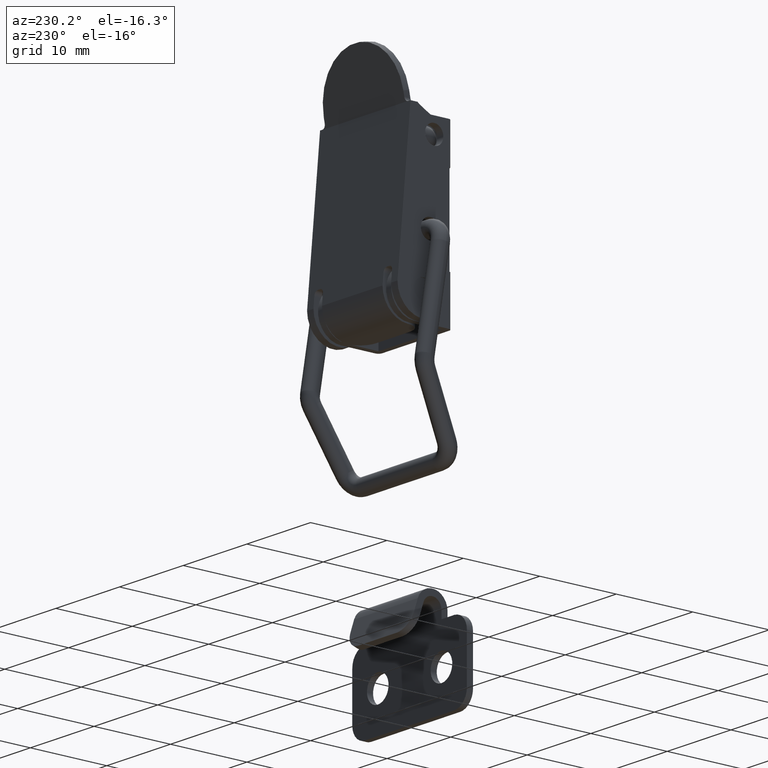
[diagram: clean part render]
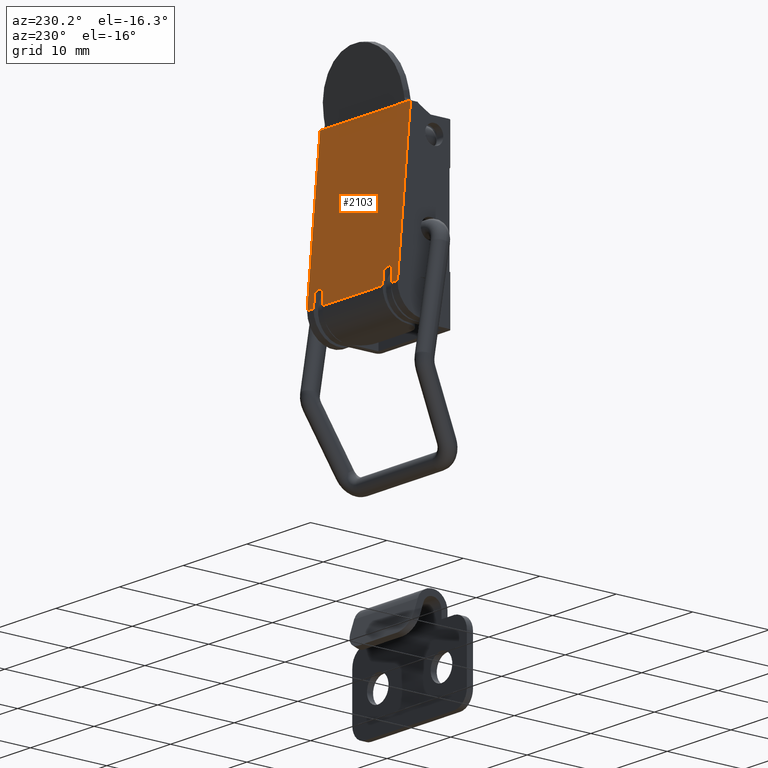
[diagram: same view with one face highlighted and labeled with its STEP entity id]
A machine part, auxiliary view. The second image highlights one B-rep face of the part: STEP entity #2103.
In plain terms, the highlighted planar face has unit normal (0, 0.9961, 0.0882).
Its self-contained STEP definition (entity closure, byte-faithful):
#101=PLANE('',#2303);
#187=LINE('',#3293,#353);
#196=LINE('',#3328,#362);
#213=LINE('',#3406,#379);
#217=LINE('',#3414,#383);
#223=LINE('',#3446,#389);
#227=LINE('',#3461,#393);
#230=LINE('',#3476,#396);
#234=LINE('',#3488,#400);
#236=LINE('',#3492,#402);
#237=LINE('',#3493,#403);
#238=LINE('',#3494,#404);
#239=LINE('',#3495,#405);
#240=LINE('',#3497,#406);
#241=LINE('',#3498,#407);
#353=VECTOR('',#2634,19.2751134886413);
#362=VECTOR('',#2665,1.39986853272778);
#379=VECTOR('',#2722,0.35001183617457);
#383=VECTOR('',#2730,0.349988155921943);
#389=VECTOR('',#2750,1.39986853272778);
#393=VECTOR('',#2764,1.39986853272777);
#396=VECTOR('',#2781,0.349999999999999);
#400=VECTOR('',#2793,0.35);
#402=VECTOR('',#2797,9.5);
#403=VECTOR('',#2798,1.39986853272777);
#404=VECTOR('',#2799,1.);
#405=VECTOR('',#2800,13.5000000079035);
#406=VECTOR('',#2801,19.2751134886413);
#407=VECTOR('',#2802,0.999999999919904);
#573=FACE_OUTER_BOUND('',#718,.T.);
#718=EDGE_LOOP('',(#1724,#1725,#1726,#1727,#1728,#1729,#1730,#1731,#1732,
#1733,#1734,#1735,#1736,#1737,#1738,#1739,#1740,#1741));
#864=CIRCLE('',#2283,0.5);
#868=CIRCLE('',#2289,0.5);
#874=CIRCLE('',#2297,0.5);
#876=CIRCLE('',#2301,0.5);
#987=VERTEX_POINT('',#3290);
#988=VERTEX_POINT('',#3292);
#1002=VERTEX_POINT('',#3325);
#1003=VERTEX_POINT('',#3327);
#1020=VERTEX_POINT('',#3390);
#1024=VERTEX_POINT('',#3402);
#1026=VERTEX_POINT('',#3412);
#1029=VERTEX_POINT('',#3430);
#1030=VERTEX_POINT('',#3432);
#1035=VERTEX_POINT('',#3444);
#1038=VERTEX_POINT('',#3451);
#1039=VERTEX_POINT('',#3453);
#1041=VERTEX_POINT('',#3459);
#1046=VERTEX_POINT('',#3472);
#1049=VERTEX_POINT('',#3482);
#1050=VERTEX_POINT('',#3484);
#1051=VERTEX_POINT('',#3491);
#1052=VERTEX_POINT('',#3496);
#1220=EDGE_CURVE('',#987,#988,#187,.T.);
#1237=EDGE_CURVE('',#1003,#1002,#196,.T.);
#1268=EDGE_CURVE('',#1024,#987,#213,.T.);
#1272=EDGE_CURVE('',#1026,#1020,#217,.T.);
#1276=EDGE_CURVE('',#1029,#1030,#864,.T.);
#1283=EDGE_CURVE('',#1029,#1035,#223,.T.);
#1286=EDGE_CURVE('',#1038,#1039,#868,.T.);
#1290=EDGE_CURVE('',#1038,#1041,#227,.T.);
#1297=EDGE_CURVE('',#1046,#1002,#874,.T.);
#1298=EDGE_CURVE('',#1046,#1030,#230,.T.);
#1302=EDGE_CURVE('',#1049,#1050,#876,.T.);
#1304=EDGE_CURVE('',#1049,#1039,#234,.T.);
#1306=EDGE_CURVE('',#1035,#1051,#236,.T.);
#1307=EDGE_CURVE('',#1051,#1050,#237,.T.);
#1308=EDGE_CURVE('',#1041,#988,#238,.T.);
#1309=EDGE_CURVE('',#1020,#1024,#239,.T.);
#1310=EDGE_CURVE('',#1052,#1026,#240,.T.);
#1311=EDGE_CURVE('',#1052,#1003,#241,.T.);
#1724=ORIENTED_EDGE('',*,*,#1237,.T.);
#1725=ORIENTED_EDGE('',*,*,#1297,.F.);
#1726=ORIENTED_EDGE('',*,*,#1298,.T.);
#1727=ORIENTED_EDGE('',*,*,#1276,.F.);
#1728=ORIENTED_EDGE('',*,*,#1283,.T.);
#1729=ORIENTED_EDGE('',*,*,#1306,.T.);
#1730=ORIENTED_EDGE('',*,*,#1307,.T.);
#1731=ORIENTED_EDGE('',*,*,#1302,.F.);
#1732=ORIENTED_EDGE('',*,*,#1304,.T.);
#1733=ORIENTED_EDGE('',*,*,#1286,.F.);
#1734=ORIENTED_EDGE('',*,*,#1290,.T.);
#1735=ORIENTED_EDGE('',*,*,#1308,.T.);
#1736=ORIENTED_EDGE('',*,*,#1220,.F.);
#1737=ORIENTED_EDGE('',*,*,#1268,.F.);
#1738=ORIENTED_EDGE('',*,*,#1309,.F.);
#1739=ORIENTED_EDGE('',*,*,#1272,.F.);
#1740=ORIENTED_EDGE('',*,*,#1310,.F.);
#1741=ORIENTED_EDGE('',*,*,#1311,.T.);
#2103=ADVANCED_FACE('',(#573),#101,.T.);
#2283=AXIS2_PLACEMENT_3D('',#3433,#2738,#2739);
#2289=AXIS2_PLACEMENT_3D('',#3454,#2756,#2757);
#2297=AXIS2_PLACEMENT_3D('',#3474,#2777,#2778);
#2301=AXIS2_PLACEMENT_3D('',#3485,#2788,#2789);
#2303=AXIS2_PLACEMENT_3D('',#3490,#2795,#2796);
#2634=DIRECTION('',(0.,0.0881966272728719,-0.996103084493613));
#2665=DIRECTION('',(-4.21570248046218E-11,-0.0881966272728719,0.996103084493613));
#2722=DIRECTION('',(-1.,0.,0.));
#2730=DIRECTION('',(-1.,0.,0.));
#2738=DIRECTION('center_axis',(0.,0.996103084493613,0.088196627272872));
#2739=DIRECTION('ref_axis',(-0.707106781186548,-0.06236443322243,0.70435124580627));
#2750=DIRECTION('',(-2.21665743471942E-16,0.0881966272728719,-0.996103084493613));
#2756=DIRECTION('center_axis',(0.,0.996103084493613,0.088196627272872));
#2757=DIRECTION('ref_axis',(-0.707106781186548,-0.06236443322243,0.70435124580627));
#2764=DIRECTION('',(-4.67654591408974E-16,0.0881966272728719,-0.996103084493613));
#2777=DIRECTION('center_axis',(0.,0.996103084493613,0.088196627272872));
#2778=DIRECTION('ref_axis',(0.707106781186549,-0.0623644332224302,0.704351245806269));
#2781=DIRECTION('',(-1.,2.9147645101226E-17,-3.29196932907964E-16));
#2788=DIRECTION('center_axis',(0.,0.996103084493613,0.088196627272872));
#2789=DIRECTION('ref_axis',(0.707106781186546,-0.0623644332224302,0.704351245806272));
#2793=DIRECTION('',(-1.,2.9147645101226E-17,-3.29196932907964E-16));
#2795=DIRECTION('center_axis',(0.,0.996103084493613,0.088196627272872));
#2796=DIRECTION('ref_axis',(0.,-0.088196627272872,0.996103084493613));
#2797=DIRECTION('',(-1.,0.,0.));
#2798=DIRECTION('',(-4.68522441199103E-16,-0.0881966272728719,0.996103084493613));
#2799=DIRECTION('',(-1.,0.,0.));
#2800=DIRECTION('',(-1.,0.,0.));
#2801=DIRECTION('',(0.,-0.0881966272728719,0.996103084493613));
#2802=DIRECTION('',(-1.,0.,0.));
#3290=CARTESIAN_POINT('',(-7.1,5.1,19.2));
#3292=CARTESIAN_POINT('',(-7.1,6.8,0.));
#3293=CARTESIAN_POINT('',(-7.1,5.1,19.2));
#3325=CARTESIAN_POINT('',(6.10000000002108,6.67653631678799,1.39441336333569));
#3327=CARTESIAN_POINT('',(6.1000000000801,6.8,0.));
#3328=CARTESIAN_POINT('',(6.10000000004005,6.71621900156443,0.946232452919321));
#3390=CARTESIAN_POINT('',(6.75001184407806,5.1,19.2));
#3402=CARTESIAN_POINT('',(-6.74998816382543,5.1,19.2));
#3406=CARTESIAN_POINT('',(0.,5.1,19.2));
#3412=CARTESIAN_POINT('',(7.1,5.1,19.2));
#3414=CARTESIAN_POINT('',(0.,5.1,19.2));
#3430=CARTESIAN_POINT('',(4.75,6.67653631678799,1.39441336333569));
#3432=CARTESIAN_POINT('',(5.25,6.63243800315155,1.89246490558249));
#3433=CARTESIAN_POINT('Origin',(5.25,6.67653631678799,1.39441336333569));
#3444=CARTESIAN_POINT('',(4.75,6.8,0.));
#3446=CARTESIAN_POINT('',(4.75,6.89355818324229,-1.05665712838354));
#3451=CARTESIAN_POINT('',(-6.1,6.67653631678799,1.39441336333568));
#3453=CARTESIAN_POINT('',(-5.6,6.63243800315155,1.89246490558248));
#3454=CARTESIAN_POINT('Origin',(-5.6,6.67653631678799,1.39441336333568));
#3459=CARTESIAN_POINT('',(-6.1,6.8,0.));
#3461=CARTESIAN_POINT('',(-6.1,6.89355818324461,-1.05665712840968));
#3472=CARTESIAN_POINT('',(5.6,6.63243800315155,1.89246490558249));
#3474=CARTESIAN_POINT('Origin',(5.6,6.67653631678799,1.39441336333569));
#3476=CARTESIAN_POINT('',(2.375,6.63243800315155,1.89246490558249));
#3482=CARTESIAN_POINT('',(-5.25,6.63243800315155,1.89246490558248));
#3484=CARTESIAN_POINT('',(-4.75,6.67653631678799,1.39441336333568));
#3485=CARTESIAN_POINT('Origin',(-5.25,6.67653631678799,1.39441336333568));
#3488=CARTESIAN_POINT('',(-3.05,6.63243800315155,1.89246490558249));
#3490=CARTESIAN_POINT('Origin',(0.,6.8,-4.44089209850063E-15));
#3491=CARTESIAN_POINT('',(-4.75,6.8,0.));
#3492=CARTESIAN_POINT('',(0.,6.8,0.));
#3493=CARTESIAN_POINT('',(-4.75,6.71621900157577,0.946232452791238));
#3494=CARTESIAN_POINT('',(0.,6.8,0.));
#3495=CARTESIAN_POINT('',(0.,5.1,19.2));
#3496=CARTESIAN_POINT('',(7.1,6.8,0.));
#3497=CARTESIAN_POINT('',(7.1,5.1,19.2));
#3498=CARTESIAN_POINT('',(0.,6.8,0.));